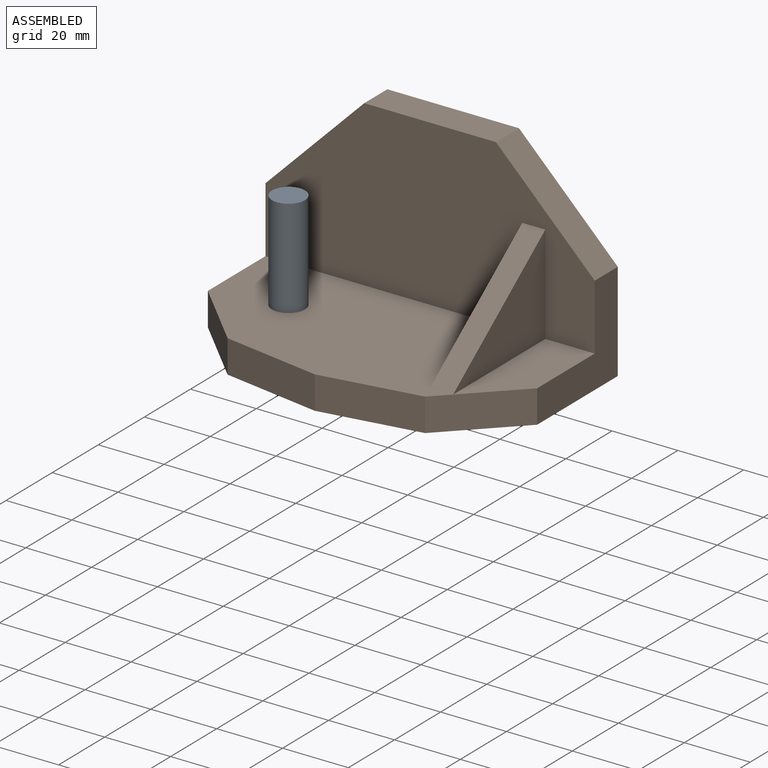
[diagram: assembled view]
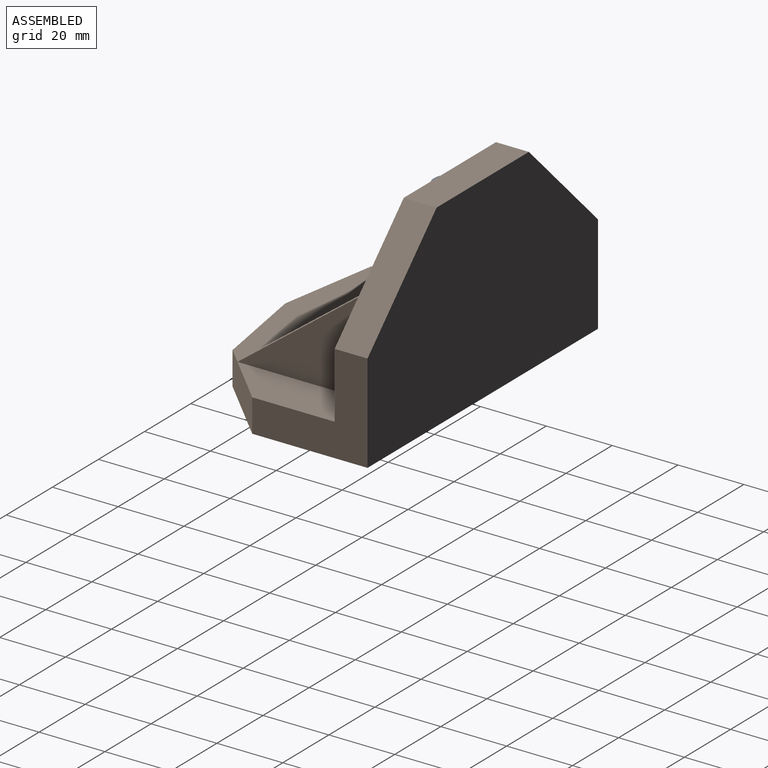
[diagram: assembled view, second angle]
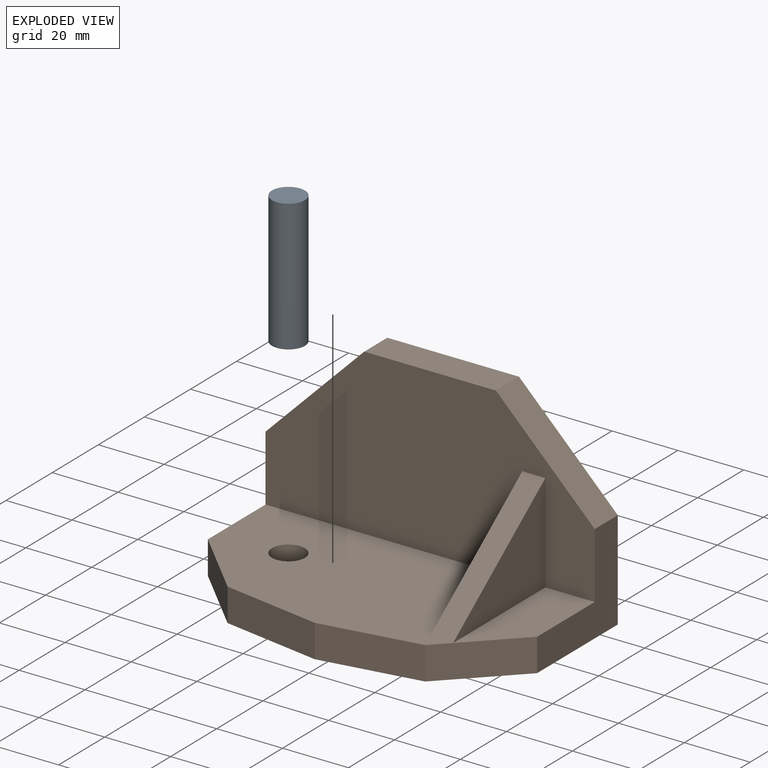
[diagram: exploded view]
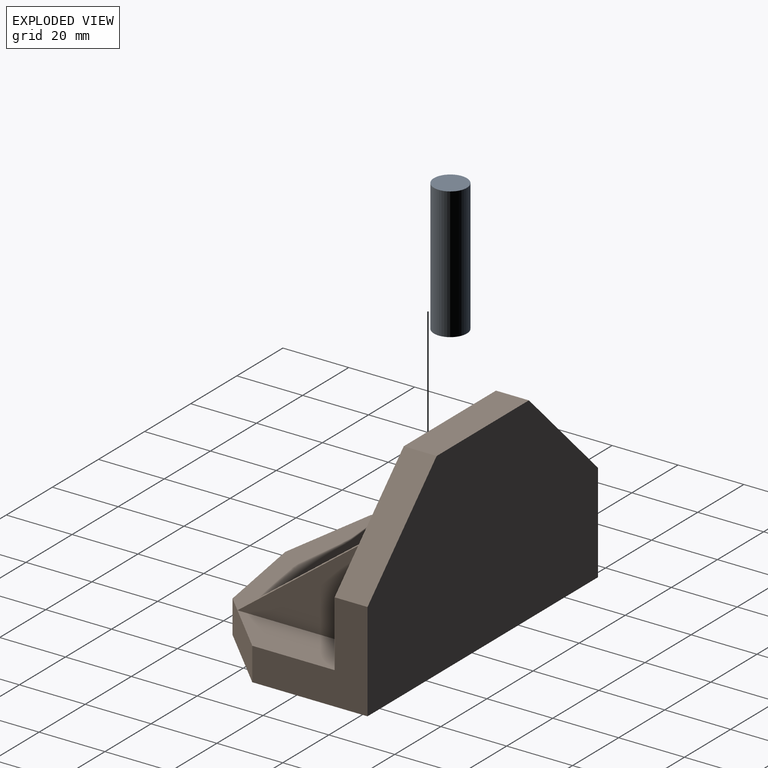
[diagram: exploded view, second angle]
ASSEMBLY  parts=2 mates=2
PART A: 3 faces, bbox 10x10x40 mm
  f0: cylinder r=5mm len=40mm, axis (0,0,-1), area 1256.6mm2, adj f1,f2
  f1: plane 10x10mm, normal (0,0,1), area 78.5mm2, adj f0
  f2: plane 10x10mm, normal (0,0,-1), area 78.5mm2, adj f0
PART B: 18 faces, bbox 100x60x60 mm
  f0: plane 40x15mm, normal (0,0,1), area 487.5mm2, adj f5,f6,f14,f17
  f1: plane 35x30mm, normal (-1,0,0), area 550mm2, adj f2,f8,f9,f12,f13,f14
  f2: plane 20x20mm, normal (-0.71,-0.71,0), area 282.8mm2, adj f1,f3,f8,f9
  f3: plane 30x10mm, normal (-0.16,-0.99,0), area 304.1mm2, adj f2,f4,f8,f9
  f4: plane 30x10mm, normal (0.16,-0.99,0), area 304.1mm2, adj f3,f5,f8,f9
  f5: plane 20x20mm, normal (0.71,-0.71,0), area 282.8mm2, adj f0,f4,f6,f8,f9
  f6: plane 35x30mm, normal (1,0,0), area 550mm2, adj f0,f5,f9,f10,f13,f14
  f7: cylinder r=5mm len=10mm, axis (0,0,-1), area 314.2mm2, adj f8,f9
  f8: plane 85x50mm, normal (0,0,1), area 3404mm2, adj f1,f2,f3,f4,f5,f7,f14,f15
  f9: plane 100x60mm, normal (0,0,-1), area 5171.5mm2, adj f1,f2,f3,f4,f5,f6,f7,f13
  f10: plane 30x30mm, normal (0.71,0,0.71), area 424.3mm2, adj f6,f11,f13,f14
  f11: plane 40x10mm, normal (0,0,1), area 400mm2, adj f10,f12,f13,f14
  f12: plane 30x30mm, normal (-0.71,0,0.71), area 424.3mm2, adj f1,f11,f13,f14
  f13: plane 100x60mm, normal (0,1,0), area 5100mm2, adj f1,f6,f9,f10,f11,f12
  f14: plane 100x50mm, normal (0,-1,0), area 3890mm2, adj f0,f1,f6,f8,f10,f11,f12,f15
  f15: plane 40x30mm, normal (0,-0.6,0.8), area 350mm2, adj f8,f14,f16,f17
  f16: plane 40x30mm, normal (-1,0,0), area 600mm2, adj f8,f14,f15
  f17: plane 40x30mm, normal (1,0,0), area 600mm2, adj f0,f14,f15
PLACE A t=(-69.97,-6.07,-18.61)mm
PLACE B t=(-41.02,14.03,-18.61)mm
MATE parallel A.f0 <-> B.f9  axis (0,0,-1) through (-69.97,-6.07,-18.61)mm
MATE cylindrical A.f0 <-> B.f7  axis (0,0,-1) through (-69.97,-6.07,1.39)mm
